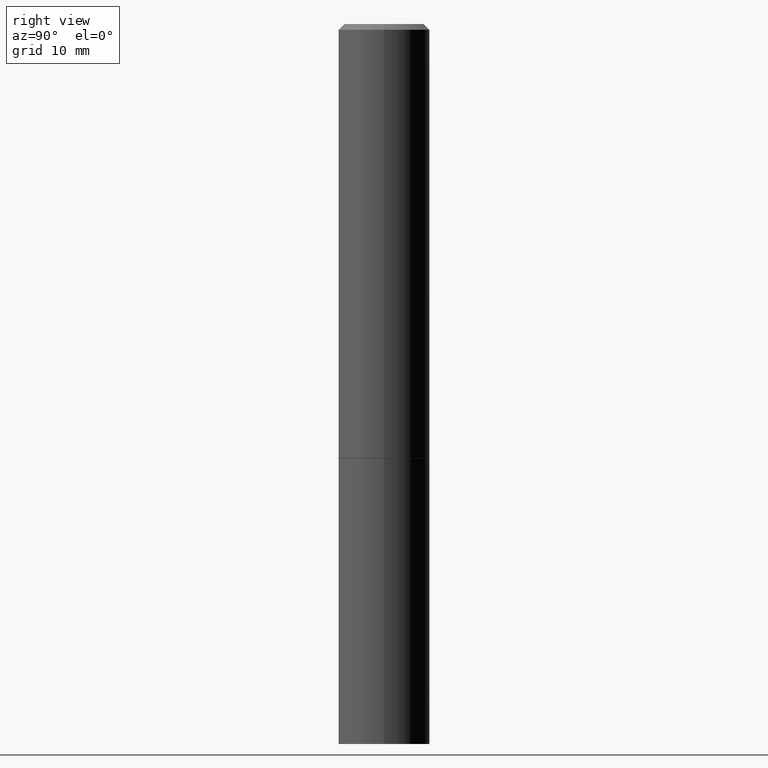
[diagram: clean part render]
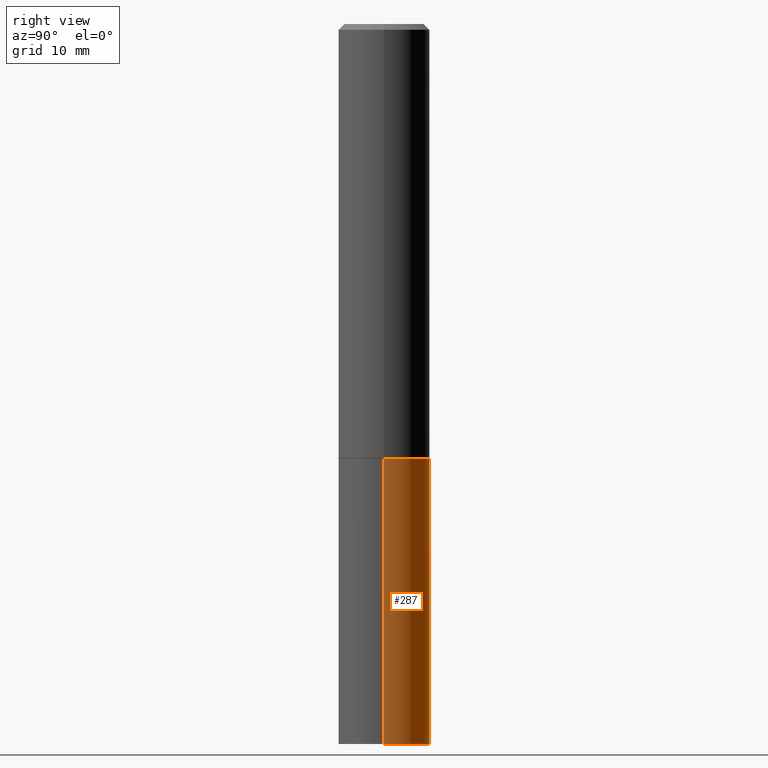
[diagram: same view with one face highlighted and labeled with its STEP entity id]
A machine part, right view. The second image highlights one B-rep face of the part: STEP entity #287.
In plain terms, the highlighted cylindrical surface (partial cylindrical patch) has radius 4.0005 mm, axis along (-0, 0, 1).
Its self-contained STEP definition (entity closure, byte-faithful):
#6 = ORIENTED_EDGE ( 'NONE', *, *, #168, .T. ) ;
#13 = AXIS2_PLACEMENT_3D ( 'NONE', #237, #212, #291 ) ;
#22 = VERTEX_POINT ( 'NONE', #106 ) ;
#35 = EDGE_CURVE ( 'NONE', #131, #22, #326, .T. ) ;
#41 = FACE_OUTER_BOUND ( 'NONE', #98, .T. ) ;
#44 = CARTESIAN_POINT ( 'NONE',  ( 0.1575000000000000011, -6.323072704644934417E-15, -1.496000000000000441 ) ) ;
#68 = EDGE_CURVE ( 'NONE', #301, #131, #146, .T. ) ;
#87 = CARTESIAN_POINT ( 'NONE',  ( 6.065496279980994755E-29, -8.659921164732655335E-15, -2.480300000000000171 ) ) ;
#98 = EDGE_LOOP ( 'NONE', ( #6, #151, #211, #101 ) ) ;
#101 = ORIENTED_EDGE ( 'NONE', *, *, #68, .F. ) ;
#106 = CARTESIAN_POINT ( 'NONE',  ( -0.1575000000000000011, -5.822483814998842744E-15, -1.496000000000000441 ) ) ;
#114 = DIRECTION ( 'NONE',  ( 1.000000000000000000, -6.982962677686261977E-15, 0.000000000000000000 ) ) ;
#116 = DIRECTION ( 'NONE',  ( -2.445468806185136597E-29, 3.491481338843145583E-15, 1.000000000000000000 ) ) ;
#131 = VERTEX_POINT ( 'NONE', #44 ) ;
#132 = CIRCLE ( 'NONE', #282, 0.1575000000000000011 ) ;
#146 = LINE ( 'NONE', #349, #184 ) ;
#151 = ORIENTED_EDGE ( 'NONE', *, *, #303, .T. ) ;
#168 = EDGE_CURVE ( 'NONE', #301, #219, #132, .T. ) ;
#174 = CYLINDRICAL_SURFACE ( 'NONE', #13, 0.1575000000000000011 ) ;
#179 = CARTESIAN_POINT ( 'NONE',  ( -0.1575000000000000011, 1.119104808822157801E-15, -7.747322767151475583E-30 ) ) ;
#184 = VECTOR ( 'NONE', #262, 39.37007874015748143 ) ;
#202 = DIRECTION ( 'NONE',  ( 1.000000000000000000, -6.982962677686268288E-15, 0.000000000000000000 ) ) ;
#211 = ORIENTED_EDGE ( 'NONE', *, *, #35, .F. ) ;
#212 = DIRECTION ( 'NONE',  ( -2.445468806185136597E-29, 3.491481338843145583E-15, 1.000000000000000000 ) ) ;
#219 = VERTEX_POINT ( 'NONE', #360 ) ;
#237 = CARTESIAN_POINT ( 'NONE',  ( 0.000000000000000000, 0.000000000000000000, 0.000000000000000000 ) ) ;
#247 = CARTESIAN_POINT ( 'NONE',  ( 0.1575000000000000011, -9.759737786468242027E-15, -2.480300000000000171 ) ) ;
#262 = DIRECTION ( 'NONE',  ( -2.445468806185136877E-29, 3.491481338843145188E-15, 1.000000000000000000 ) ) ;
#282 = AXIS2_PLACEMENT_3D ( 'NONE', #87, #319, #114 ) ;
#287 = ADVANCED_FACE ( 'NONE', ( #41 ), #174, .T. ) ;
#291 = DIRECTION ( 'NONE',  ( 1.000000000000000000, -6.982962677686265922E-15, 4.876176775795935232E-29 ) ) ;
#297 = DIRECTION ( 'NONE',  ( -2.445468806185136877E-29, 3.491481338843145188E-15, 1.000000000000000000 ) ) ;
#301 = VERTEX_POINT ( 'NONE', #247 ) ;
#303 = EDGE_CURVE ( 'NONE', #219, #22, #363, .T. ) ;
#308 = AXIS2_PLACEMENT_3D ( 'NONE', #347, #116, #202 ) ;
#319 = DIRECTION ( 'NONE',  ( -2.445468806185136597E-29, 3.491481338843145583E-15, 1.000000000000000000 ) ) ;
#326 = CIRCLE ( 'NONE', #308, 0.1575000000000000011 ) ;
#347 = CARTESIAN_POINT ( 'NONE',  ( 3.658421334052965286E-29, -5.223256082909346937E-15, -1.496000000000000441 ) ) ;
#349 = CARTESIAN_POINT ( 'NONE',  ( 0.1575000000000000011, -1.099816621735586889E-15, 7.679978421878598033E-30 ) ) ;
#350 = VECTOR ( 'NONE', #297, 39.37007874015748143 ) ;
#360 = CARTESIAN_POINT ( 'NONE',  ( -0.1575000000000000011, -5.822483814998842744E-15, -2.480300000000000171 ) ) ;
#363 = LINE ( 'NONE', #179, #350 ) ;